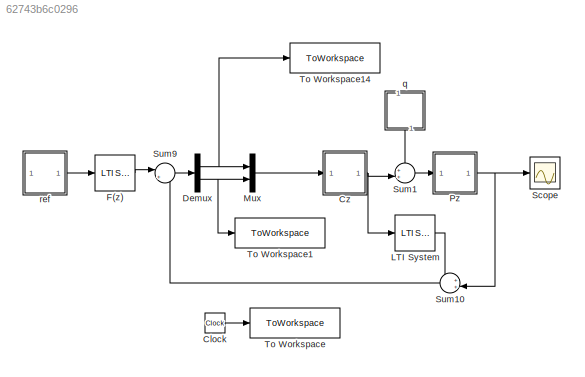
MODEL slx_62743b6c0296
KIND model
CONFIG AbsTol = auto
CONFIG EnableMultiTasking = off
CONFIG FixedStep = auto
CONFIG MaxStep = auto
CONFIG MinStep = auto
CONFIG RelTol = 1e-3
CONFIG SampleTimeConstraint = Unconstrained
CONFIG SolverName = VariableStepAuto
CONFIG StartTime = 0.0
CONFIG StopTime = Tsim
BLOCK [Clock] Clock
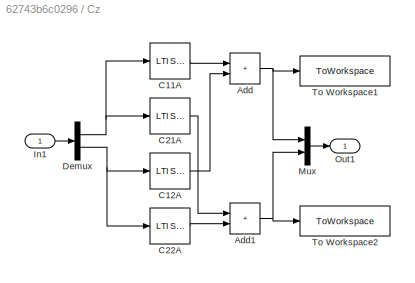
BLOCK [SubSystem] Cz
BLOCK [Sum] Cz/Add
  IconShape = rectangular
BLOCK [Sum] Cz/Add1
  IconShape = rectangular
BLOCK [Reference] Cz/C11A  REF=cstblocks/LTI System
  SourceBlock = cstblocks/LTI System
  SourceType = LTI Block
BLOCK [Reference] Cz/C12A  REF=cstblocks/LTI System
  SourceBlock = cstblocks/LTI System
  SourceType = LTI Block
BLOCK [Reference] Cz/C21A  REF=cstblocks/LTI System
  SourceBlock = cstblocks/LTI System
  SourceType = LTI Block
BLOCK [Reference] Cz/C22A  REF=cstblocks/LTI System
  SourceBlock = cstblocks/LTI System
  SourceType = LTI Block
BLOCK [Demux] Cz/Demux
  Outputs = 2
BLOCK [Inport] Cz/In1
BLOCK [Mux] Cz/Mux
  DisplayOption = bar
  Inputs = 2
BLOCK [Outport] Cz/Out1
BLOCK [ToWorkspace] Cz/To Workspace1
  FixptAsFi = on
  MaxDataPoints = inf
  SampleTime = Ts
  VariableName = cSignal1A
BLOCK [ToWorkspace] Cz/To Workspace2
  FixptAsFi = on
  MaxDataPoints = inf
  SampleTime = Ts
  VariableName = cSignal2A
BLOCK [Demux] Demux
  Outputs = 2
BLOCK [Reference] F(z)  REF=cstblocks/LTI System
  SourceBlock = cstblocks/LTI System
  SourceType = LTI Block
BLOCK [Reference] LTI System  REF=cstblocks/LTI System
  SourceBlock = cstblocks/LTI System
  SourceType = LTI Block
BLOCK [Mux] Mux
  DisplayOption = bar
  Inputs = 2
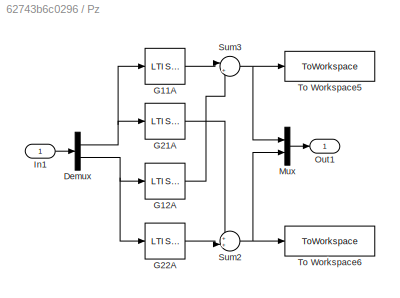
BLOCK [SubSystem] Pz
BLOCK [Demux] Pz/Demux
  Outputs = 2
BLOCK [Reference] Pz/G11A  REF=cstblocks/LTI System
  SourceBlock = cstblocks/LTI System
  SourceType = LTI Block
BLOCK [Reference] Pz/G12A  REF=cstblocks/LTI System
  SourceBlock = cstblocks/LTI System
  SourceType = LTI Block
BLOCK [Reference] Pz/G21A  REF=cstblocks/LTI System
  SourceBlock = cstblocks/LTI System
  SourceType = LTI Block
BLOCK [Reference] Pz/G22A  REF=cstblocks/LTI System
  SourceBlock = cstblocks/LTI System
  SourceType = LTI Block
BLOCK [Inport] Pz/In1
BLOCK [Mux] Pz/Mux
  DisplayOption = bar
  Inputs = 2
BLOCK [Outport] Pz/Out1
BLOCK [Sum] Pz/Sum2
  Inputs = ++|
BLOCK [Sum] Pz/Sum3
  Inputs = |++
BLOCK [ToWorkspace] Pz/To Workspace5
  FixptAsFi = on
  MaxDataPoints = inf
  SampleTime = Ts
  VariableName = y1A
BLOCK [ToWorkspace] Pz/To Workspace6
  FixptAsFi = on
  MaxDataPoints = inf
  SampleTime = Ts
  VariableName = y2A
BLOCK [Scope] Scope
  Floating = off
  NumInputPorts = 1
  ScopeSpecificationString = Simulink.scopes.TimeScopeBlockCfg('CurrentConfiguration', extmgr.ConfigurationSet(extmgr.Configuration('Core','General UI',true),extmgr.Configuration('Core','Source UI',true),extmgr.Configuration('Sources','WiredSimulink',true),extmgr.Configuration('Visuals','Time Domain',true,'SerializedDisplays',{struct('MinYLimReal','-3.01277','MaxYLimReal','4.38187','YLabelReal','','MinYLimMag','0.00000','MaxY...<+1364ch>
BLOCK [Sum] Sum1
  Inputs = ++|
  NameLocation = top
BLOCK [Sum] Sum10
  Inputs = ++|
  NameLocation = top
BLOCK [Sum] Sum9
  Inputs = |+-
BLOCK [ToWorkspace] To Workspace
  FixptAsFi = on
  MaxDataPoints = inf
  SampleTime = Ts
  VariableName = cpi_time
BLOCK [ToWorkspace] To Workspace1
  FixptAsFi = on
  MaxDataPoints = inf
  SampleTime = Ts
  VariableName = e2
BLOCK [ToWorkspace] To Workspace14
  FixptAsFi = on
  MaxDataPoints = inf
  SampleTime = Ts
  VariableName = e1
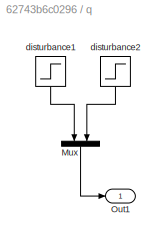
BLOCK [SubSystem] q
  NameLocation = left
BLOCK [Mux] q/Mux
  DisplayOption = bar
  Inputs = 2
  NameLocation = left
BLOCK [Outport] q/Out1
BLOCK [Step] q/disturbance1
  After = finalDisturbance1Value
  Before = initialDisturbance1Value
  NameLocation = top
  SampleTime = Ts
  Time = Tref1
BLOCK [Step] q/disturbance2
  After = finalDisturbance2Value
  Before = initialDisturbance2Value
  NameLocation = top
  SampleTime = Ts
  Time = Tref2
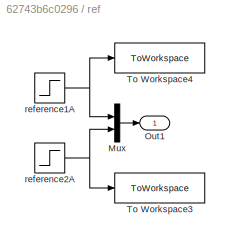
BLOCK [SubSystem] ref
BLOCK [Mux] ref/Mux
  DisplayOption = bar
  Inputs = 2
BLOCK [Outport] ref/Out1
BLOCK [ToWorkspace] ref/To Workspace3
  FixptAsFi = on
  MaxDataPoints = inf
  SampleTime = Ts
  VariableName = u2
BLOCK [ToWorkspace] ref/To Workspace4
  FixptAsFi = on
  MaxDataPoints = inf
  SampleTime = Ts
  VariableName = u1
BLOCK [Step] ref/reference1A
  After = finalReference1Value
  Before = initialReference1Value
  SampleTime = Ts
  Time = Tref1
BLOCK [Step] ref/reference2A
  After = finalReference2Value
  Before = initialReference2Value
  SampleTime = Ts
  Time = Tref2
LINE Clock:1 -> To Workspace:1
NET Cz/Add1:1 -> Cz/Mux:2, Cz/To Workspace2:1
NET Cz/Add:1 -> Cz/Mux:1, Cz/To Workspace1:1
LINE Cz/C11A:1 -> Cz/Add:1
LINE Cz/C12A:1 -> Cz/Add:2
LINE Cz/C21A:1 -> Cz/Add1:1
LINE Cz/C22A:1 -> Cz/Add1:2
NET Cz/Demux:1 -> Cz/C11A:1, Cz/C21A:1
NET Cz/Demux:2 -> Cz/C12A:1, Cz/C22A:1
LINE Cz/In1:1 -> Cz/Demux:1
LINE Cz/Mux:1 -> Cz/Out1:1
NET Cz:1 -> LTI System:1, Sum1:2
NET Demux:1 -> Mux:1, To Workspace14:1
NET Demux:2 -> Mux:2, To Workspace1:1
LINE F(z):1 -> Sum9:1
LINE LTI System:1 -> Sum10:1
LINE Mux:1 -> Cz:1
NET Pz/Demux:1 -> Pz/G11A:1, Pz/G21A:1
NET Pz/Demux:2 -> Pz/G12A:1, Pz/G22A:1
LINE Pz/G11A:1 -> Pz/Sum3:1
LINE Pz/G12A:1 -> Pz/Sum3:2
LINE Pz/G21A:1 -> Pz/Sum2:1
LINE Pz/G22A:1 -> Pz/Sum2:2
LINE Pz/In1:1 -> Pz/Demux:1
LINE Pz/Mux:1 -> Pz/Out1:1
NET Pz/Sum2:1 -> Pz/Mux:2, Pz/To Workspace6:1
NET Pz/Sum3:1 -> Pz/Mux:1, Pz/To Workspace5:1
NET Pz:1 -> Scope:1, Sum10:2
LINE Sum10:1 -> Sum9:2
LINE Sum1:1 -> Pz:1
LINE Sum9:1 -> Demux:1
LINE q/Mux:1 -> q/Out1:1
LINE q/disturbance1:1 -> q/Mux:1
LINE q/disturbance2:1 -> q/Mux:2
LINE q:1 -> Sum1:1
LINE ref/Mux:1 -> ref/Out1:1
NET ref/reference1A:1 -> ref/Mux:1, ref/To Workspace4:1
NET ref/reference2A:1 -> ref/Mux:2, ref/To Workspace3:1
LINE ref:1 -> F(z):1
note: NET lines group one-source signal fan-out (src -> all destinations, sorted); 1:1 wires keep LINE
